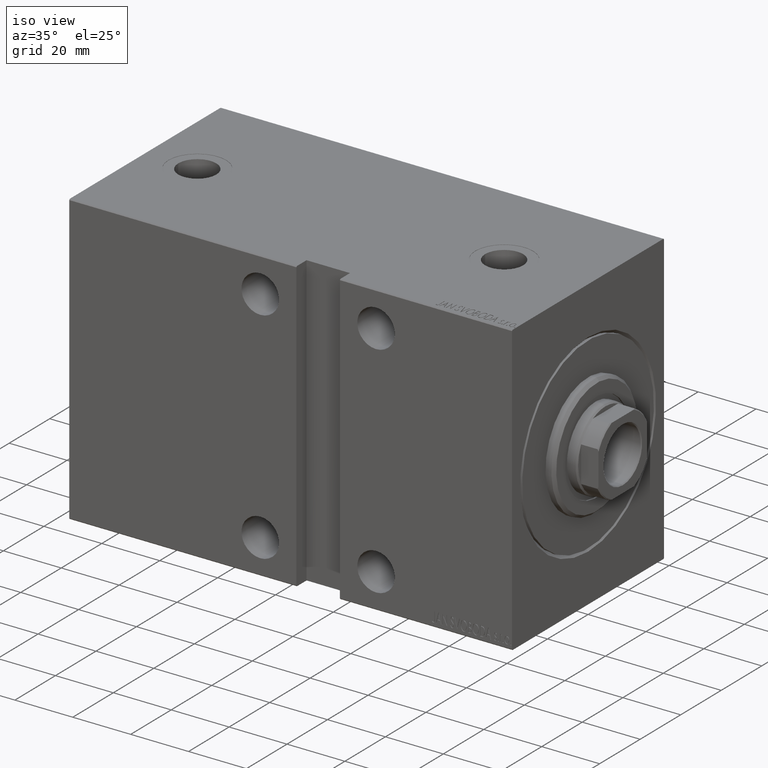
[diagram: clean part render]
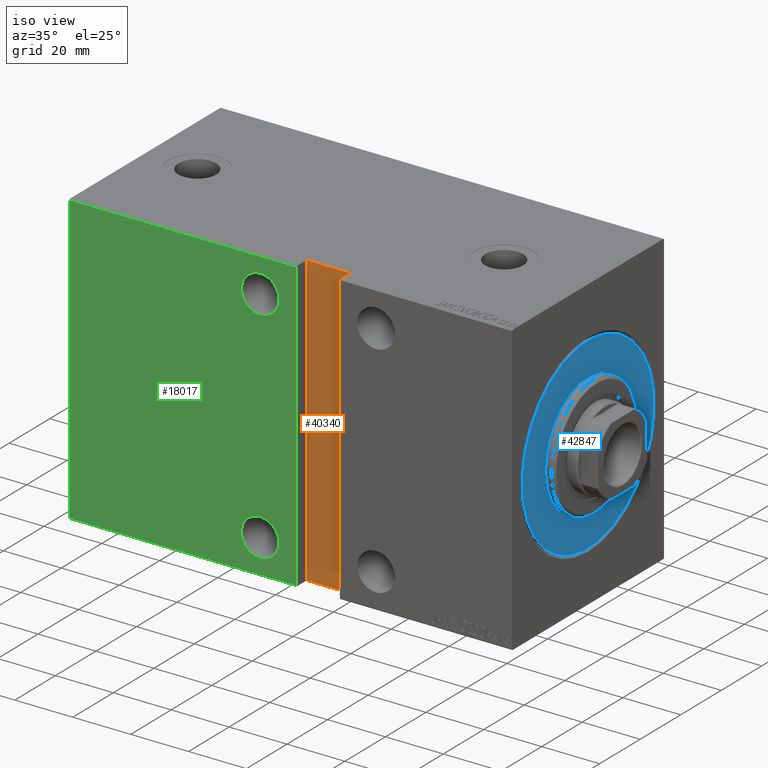
[diagram: same view with three faces highlighted in distinct colors, each labeled with its STEP entity id]
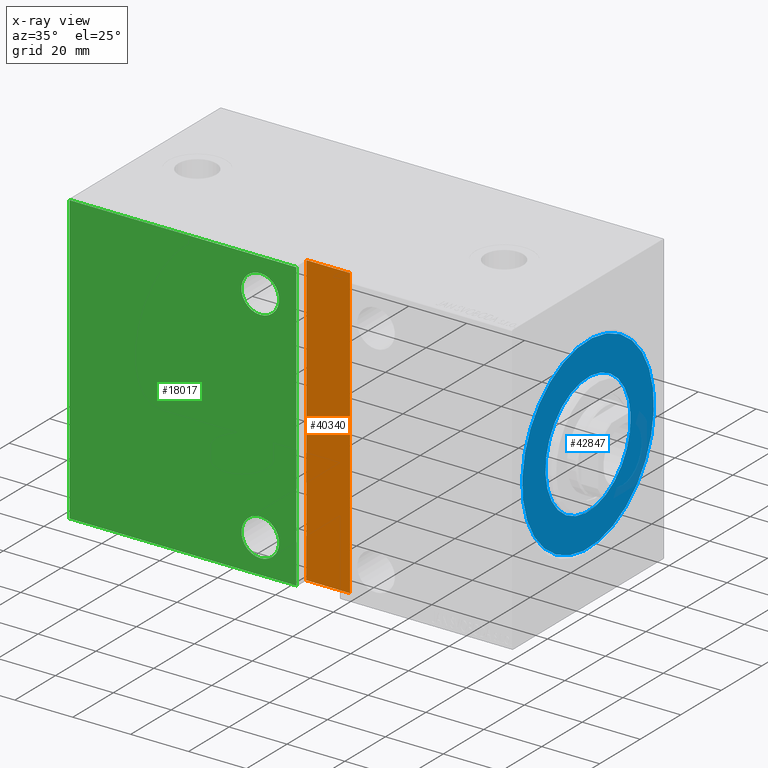
[diagram: x-ray of the same camera — body ghosted, the three highlighted faces saturated]
A machine part, iso view with three faces highlighted in distinct colors.
The next image is the same camera in x-ray (body ghosted, the three faces saturated) — at least one of them is partly hidden behind the body in this view.
Their STEP definitions:

[orange] entity #40340 — the highlighted planar face has unit normal (0, -1, -0).
#128 = LINE ( 'NONE', #20967, #19027 ) ;
#233 = CARTESIAN_POINT ( 'NONE',  ( 59.50000000000001421, 32.50000000000001421, 50.00000000000000000 ) ) ;
#967 = DIRECTION ( 'NONE',  ( -1.387778780781445676E-16, 0.000000000000000000, -1.000000000000000000 ) ) ;
#1252 = DIRECTION ( 'NONE',  ( 1.000000000000000000, 0.000000000000000000, 0.000000000000000000 ) ) ;
#1839 = DIRECTION ( 'NONE',  ( 0.000000000000000000, -0.000000000000000000, 1.000000000000000000 ) ) ;
#3887 = EDGE_CURVE ( 'NONE', #4710, #32800, #34693, .T. ) ;
#4305 = CARTESIAN_POINT ( 'NONE',  ( 74.50000000000002842, 32.50000000000001421, 50.00000000000000000 ) ) ;
#4710 = VERTEX_POINT ( 'NONE', #7226 ) ;
#7022 = DIRECTION ( 'NONE',  ( 1.000000000000000000, 0.000000000000000000, 0.000000000000000000 ) ) ;
#7226 = CARTESIAN_POINT ( 'NONE',  ( 74.50000000000002842, 32.50000000000001421, 50.00000000000000000 ) ) ;
#9083 = CARTESIAN_POINT ( 'NONE',  ( 59.50000000000001421, 32.50000000000001421, 50.00000000000000000 ) ) ;
#10224 = DIRECTION ( 'NONE',  ( -6.938893903907228378E-17, 0.000000000000000000, -1.000000000000000000 ) ) ;
#12607 = VERTEX_POINT ( 'NONE', #19993 ) ;
#14768 = ORIENTED_EDGE ( 'NONE', *, *, #3887, .T. ) ;
#15378 = CARTESIAN_POINT ( 'NONE',  ( 0.000000000000000000, 32.50000000000001421, 0.000000000000000000 ) ) ;
#17187 = ORIENTED_EDGE ( 'NONE', *, *, #20558, .F. ) ;
#19027 = VECTOR ( 'NONE', #7022, 1000.000000000000000 ) ;
#19256 = VECTOR ( 'NONE', #967, 1000.000000000000000 ) ;
#19993 = CARTESIAN_POINT ( 'NONE',  ( 59.50000000000000711, 32.50000000000001421, -50.00000000000000000 ) ) ;
#20163 = EDGE_CURVE ( 'NONE', #12607, #32800, #31645, .T. ) ;
#20558 = EDGE_CURVE ( 'NONE', #34324, #12607, #40838, .T. ) ;
#20950 = AXIS2_PLACEMENT_3D ( 'NONE', #15378, #39326, #1839 ) ;
#20967 = CARTESIAN_POINT ( 'NONE',  ( 59.50000000000001421, 32.50000000000001421, 50.00000000000000000 ) ) ;
#24423 = CARTESIAN_POINT ( 'NONE',  ( 74.50000000000002842, 32.50000000000001421, -50.00000000000000000 ) ) ;
#25806 = PLANE ( 'NONE',  #20950 ) ;
#26871 = ORIENTED_EDGE ( 'NONE', *, *, #29093, .T. ) ;
#28677 = FACE_OUTER_BOUND ( 'NONE', #29746, .T. ) ;
#29093 = EDGE_CURVE ( 'NONE', #34324, #4710, #128, .T. ) ;
#29746 = EDGE_LOOP ( 'NONE', ( #31941, #17187, #26871, #14768 ) ) ;
#30167 = VECTOR ( 'NONE', #1252, 1000.000000000000000 ) ;
#31645 = LINE ( 'NONE', #38749, #30167 ) ;
#31941 = ORIENTED_EDGE ( 'NONE', *, *, #20163, .F. ) ;
#32800 = VERTEX_POINT ( 'NONE', #24423 ) ;
#34324 = VERTEX_POINT ( 'NONE', #9083 ) ;
#34693 = LINE ( 'NONE', #4305, #19256 ) ;
#38749 = CARTESIAN_POINT ( 'NONE',  ( 59.50000000000000711, 32.50000000000001421, -50.00000000000000000 ) ) ;
#39326 = DIRECTION ( 'NONE',  ( -0.000000000000000000, 1.000000000000000000, 0.000000000000000000 ) ) ;
#40340 = ADVANCED_FACE ( 'NONE', ( #28677 ), #25806, .T. ) ;
#40838 = LINE ( 'NONE', #233, #42936 ) ;
#42936 = VECTOR ( 'NONE', #10224, 1000.000000000000000 ) ;

[blue] entity #42847 — the highlighted planar face has unit normal (-1, 0, 0).
#171 = EDGE_CURVE ( 'NONE', #12623, #2119, #5093, .T. ) ;
#670 = AXIS2_PLACEMENT_3D ( 'NONE', #25801, #32662, #40211 ) ;
#1465 = ORIENTED_EDGE ( 'NONE', *, *, #43918, .F. ) ;
#1968 = FACE_BOUND ( 'NONE', #10017, .T. ) ;
#2119 = VERTEX_POINT ( 'NONE', #6058 ) ;
#3316 = DIRECTION ( 'NONE',  ( 0.000000000000000000, 0.000000000000000000, -1.000000000000000000 ) ) ;
#3707 = EDGE_LOOP ( 'NONE', ( #41887, #42313 ) ) ;
#4179 = CARTESIAN_POINT ( 'NONE',  ( 0.000000000000000000, 0.000000000000000000, 0.000000000000000000 ) ) ;
#5093 = CIRCLE ( 'NONE', #42662, 32.50000000000000000 ) ;
#6058 = CARTESIAN_POINT ( 'NONE',  ( 0.000000000000000000, 0.000000000000000000, -32.50000000000000000 ) ) ;
#8132 = VERTEX_POINT ( 'NONE', #27692 ) ;
#8839 = PLANE ( 'NONE',  #21746 ) ;
#9054 = CARTESIAN_POINT ( 'NONE',  ( 0.000000000000000000, 0.000000000000000000, 0.000000000000000000 ) ) ;
#10017 = EDGE_LOOP ( 'NONE', ( #1465, #43062 ) ) ;
#10254 = AXIS2_PLACEMENT_3D ( 'NONE', #4179, #23948, #3316 ) ;
#11129 = AXIS2_PLACEMENT_3D ( 'NONE', #14338, #31640, #34544 ) ;
#12623 = VERTEX_POINT ( 'NONE', #33528 ) ;
#13169 = CIRCLE ( 'NONE', #11129, 21.00000000000000000 ) ;
#14338 = CARTESIAN_POINT ( 'NONE',  ( 0.000000000000000000, 0.000000000000000000, 0.000000000000000000 ) ) ;
#15496 = FACE_OUTER_BOUND ( 'NONE', #3707, .T. ) ;
#17620 = VERTEX_POINT ( 'NONE', #23403 ) ;
#18802 = DIRECTION ( 'NONE',  ( 0.000000000000000000, 0.000000000000000000, 1.000000000000000000 ) ) ;
#21706 = CARTESIAN_POINT ( 'NONE',  ( 0.000000000000000000, 0.000000000000000000, 0.000000000000000000 ) ) ;
#21746 = AXIS2_PLACEMENT_3D ( 'NONE', #21706, #29029, #42567 ) ;
#23403 = CARTESIAN_POINT ( 'NONE',  ( 0.000000000000000000, 0.000000000000000000, 21.00000000000000000 ) ) ;
#23948 = DIRECTION ( 'NONE',  ( 1.000000000000000000, -0.000000000000000000, 0.000000000000000000 ) ) ;
#25801 = CARTESIAN_POINT ( 'NONE',  ( 0.000000000000000000, 0.000000000000000000, 0.000000000000000000 ) ) ;
#27692 = CARTESIAN_POINT ( 'NONE',  ( 0.000000000000000000, 2.571758278209441661E-15, -21.00000000000000000 ) ) ;
#29029 = DIRECTION ( 'NONE',  ( -1.000000000000000000, 0.000000000000000000, 0.000000000000000000 ) ) ;
#30530 = EDGE_CURVE ( 'NONE', #2119, #12623, #31824, .T. ) ;
#31640 = DIRECTION ( 'NONE',  ( 1.000000000000000000, -0.000000000000000000, 0.000000000000000000 ) ) ;
#31824 = CIRCLE ( 'NONE', #670, 32.50000000000000000 ) ;
#32662 = DIRECTION ( 'NONE',  ( -1.000000000000000000, 0.000000000000000000, 0.000000000000000000 ) ) ;
#33528 = CARTESIAN_POINT ( 'NONE',  ( 0.000000000000000000, 3.980102097228898626E-15, 32.50000000000000000 ) ) ;
#34544 = DIRECTION ( 'NONE',  ( 0.000000000000000000, 0.000000000000000000, -1.000000000000000000 ) ) ;
#37176 = CIRCLE ( 'NONE', #10254, 21.00000000000000000 ) ;
#37390 = EDGE_CURVE ( 'NONE', #8132, #17620, #37176, .T. ) ;
#40211 = DIRECTION ( 'NONE',  ( 0.000000000000000000, 0.000000000000000000, 1.000000000000000000 ) ) ;
#41887 = ORIENTED_EDGE ( 'NONE', *, *, #30530, .F. ) ;
#42313 = ORIENTED_EDGE ( 'NONE', *, *, #171, .F. ) ;
#42338 = DIRECTION ( 'NONE',  ( -1.000000000000000000, 0.000000000000000000, 0.000000000000000000 ) ) ;
#42567 = DIRECTION ( 'NONE',  ( 0.000000000000000000, 0.000000000000000000, 1.000000000000000000 ) ) ;
#42662 = AXIS2_PLACEMENT_3D ( 'NONE', #9054, #42338, #18802 ) ;
#42847 = ADVANCED_FACE ( 'NONE', ( #1968, #15496 ), #8839, .F. ) ;
#43062 = ORIENTED_EDGE ( 'NONE', *, *, #37390, .F. ) ;
#43918 = EDGE_CURVE ( 'NONE', #17620, #8132, #13169, .T. ) ;

[green] entity #18017 — the highlighted planar face has unit normal (-0, 1, -0).
#3968 = DIRECTION ( 'NONE',  ( 1.000000000000000000, 0.000000000000000000, 0.000000000000000000 ) ) ;
#4671 = DIRECTION ( 'NONE',  ( 0.000000000000000000, 0.000000000000000000, 1.000000000000000000 ) ) ;
#4798 = VERTEX_POINT ( 'NONE', #17833 ) ;
#5235 = CARTESIAN_POINT ( 'NONE',  ( 153.0000000000000000, 37.50000000000002132, -49.69999999999998153 ) ) ;
#5584 = DIRECTION ( 'NONE',  ( 0.000000000000000000, 0.000000000000000000, 1.000000000000000000 ) ) ;
#5711 = FACE_OUTER_BOUND ( 'NONE', #30358, .T. ) ;
#6149 = EDGE_CURVE ( 'NONE', #4798, #35190, #15752, .T. ) ;
#7047 = EDGE_CURVE ( 'NONE', #26431, #42144, #17205, .T. ) ;
#8865 = VECTOR ( 'NONE', #38272, 1000.000000000000000 ) ;
#9247 = ORIENTED_EDGE ( 'NONE', *, *, #36641, .F. ) ;
#9380 = CARTESIAN_POINT ( 'NONE',  ( 74.50000000000001421, 37.50000000000001421, -49.69999999999998153 ) ) ;
#9698 = PLANE ( 'NONE',  #13224 ) ;
#10393 = VERTEX_POINT ( 'NONE', #35383 ) ;
#10907 = VECTOR ( 'NONE', #3968, 1000.000000000000000 ) ;
#11093 = EDGE_CURVE ( 'NONE', #35190, #4798, #13754, .T. ) ;
#11110 = LINE ( 'NONE', #20232, #32447 ) ;
#12539 = DIRECTION ( 'NONE',  ( -1.387778780781445676E-16, 0.000000000000000000, -1.000000000000000000 ) ) ;
#13224 = AXIS2_PLACEMENT_3D ( 'NONE', #23247, #36761, #19444 ) ;
#13754 = CIRCLE ( 'NONE', #23691, 6.500000000000005329 ) ;
#14670 = DIRECTION ( 'NONE',  ( 0.000000000000000000, 0.000000000000000000, 1.000000000000000000 ) ) ;
#15204 = LINE ( 'NONE', #5235, #8865 ) ;
#15752 = CIRCLE ( 'NONE', #17850, 6.500000000000005329 ) ;
#15859 = LINE ( 'NONE', #39164, #23002 ) ;
#16404 = CARTESIAN_POINT ( 'NONE',  ( 87.00000000000000000, 37.50000000000004263, 31.50000000000000000 ) ) ;
#16475 = CARTESIAN_POINT ( 'NONE',  ( 74.50000000000002842, 37.50000000000001421, 49.70000000000003837 ) ) ;
#16995 = CARTESIAN_POINT ( 'NONE',  ( 153.0000000000000000, 37.50000000000002132, -49.69999999999998153 ) ) ;
#17205 = CIRCLE ( 'NONE', #18588, 6.500000000000005329 ) ;
#17321 = DIRECTION ( 'NONE',  ( 0.000000000000000000, 0.000000000000000000, 1.000000000000000000 ) ) ;
#17479 = LINE ( 'NONE', #23953, #10907 ) ;
#17833 = CARTESIAN_POINT ( 'NONE',  ( 87.00000000000000000, 37.50000000000004263, -44.50000000000000000 ) ) ;
#17850 = AXIS2_PLACEMENT_3D ( 'NONE', #31501, #38376, #4671 ) ;
#18017 = ADVANCED_FACE ( 'NONE', ( #36095, #40309, #5711 ), #9698, .F. ) ;
#18498 = VERTEX_POINT ( 'NONE', #16475 ) ;
#18588 = AXIS2_PLACEMENT_3D ( 'NONE', #23792, #34195, #17321 ) ;
#18876 = CARTESIAN_POINT ( 'NONE',  ( 87.00000000000000000, 37.50000000000004263, 44.50000000000001421 ) ) ;
#19444 = DIRECTION ( 'NONE',  ( 0.000000000000000000, 1.387778780781445676E-16, -1.000000000000000000 ) ) ;
#19574 = EDGE_CURVE ( 'NONE', #42144, #26431, #21656, .T. ) ;
#20166 = CARTESIAN_POINT ( 'NONE',  ( 87.00000000000000000, 37.50000000000004263, -31.49999999999998579 ) ) ;
#20232 = CARTESIAN_POINT ( 'NONE',  ( 153.0000000000000000, 37.50000000000002132, -50.00000000000000000 ) ) ;
#21656 = CIRCLE ( 'NONE', #42201, 6.500000000000005329 ) ;
#23002 = VECTOR ( 'NONE', #12539, 1000.000000000000000 ) ;
#23247 = CARTESIAN_POINT ( 'NONE',  ( 153.0000000000000000, 37.50000000000002132, -50.00000000000000000 ) ) ;
#23691 = AXIS2_PLACEMENT_3D ( 'NONE', #32849, #39516, #5584 ) ;
#23792 = CARTESIAN_POINT ( 'NONE',  ( 87.00000000000000000, 37.50000000000004263, 38.00000000000000711 ) ) ;
#23953 = CARTESIAN_POINT ( 'NONE',  ( 153.0000000000000000, 37.50000000000000711, 49.70000000000003837 ) ) ;
#24030 = ORIENTED_EDGE ( 'NONE', *, *, #6149, .F. ) ;
#25817 = ORIENTED_EDGE ( 'NONE', *, *, #38726, .T. ) ;
#26109 = ORIENTED_EDGE ( 'NONE', *, *, #7047, .F. ) ;
#26431 = VERTEX_POINT ( 'NONE', #16404 ) ;
#26983 = EDGE_CURVE ( 'NONE', #29964, #10393, #11110, .T. ) ;
#27109 = DIRECTION ( 'NONE',  ( 0.000000000000000000, -1.387778780781445676E-16, 1.000000000000000000 ) ) ;
#29098 = CARTESIAN_POINT ( 'NONE',  ( 87.00000000000000000, 37.50000000000004263, 38.00000000000000711 ) ) ;
#29964 = VERTEX_POINT ( 'NONE', #16995 ) ;
#30340 = EDGE_LOOP ( 'NONE', ( #32530, #26109 ) ) ;
#30358 = EDGE_LOOP ( 'NONE', ( #32098, #25817, #9247, #31757 ) ) ;
#31483 = VERTEX_POINT ( 'NONE', #9380 ) ;
#31501 = CARTESIAN_POINT ( 'NONE',  ( 87.00000000000000000, 37.50000000000004263, -37.99999999999999289 ) ) ;
#31757 = ORIENTED_EDGE ( 'NONE', *, *, #36122, .T. ) ;
#32098 = ORIENTED_EDGE ( 'NONE', *, *, #26983, .F. ) ;
#32447 = VECTOR ( 'NONE', #27109, 1000.000000000000000 ) ;
#32530 = ORIENTED_EDGE ( 'NONE', *, *, #19574, .F. ) ;
#32849 = CARTESIAN_POINT ( 'NONE',  ( 87.00000000000000000, 37.50000000000004263, -37.99999999999999289 ) ) ;
#34195 = DIRECTION ( 'NONE',  ( 0.000000000000000000, 1.000000000000000000, 0.000000000000000000 ) ) ;
#34696 = ORIENTED_EDGE ( 'NONE', *, *, #11093, .F. ) ;
#35190 = VERTEX_POINT ( 'NONE', #20166 ) ;
#35383 = CARTESIAN_POINT ( 'NONE',  ( 153.0000000000000000, 37.50000000000000711, 49.70000000000003837 ) ) ;
#36095 = FACE_BOUND ( 'NONE', #36466, .T. ) ;
#36122 = EDGE_CURVE ( 'NONE', #18498, #10393, #17479, .T. ) ;
#36466 = EDGE_LOOP ( 'NONE', ( #34696, #24030 ) ) ;
#36641 = EDGE_CURVE ( 'NONE', #18498, #31483, #15859, .T. ) ;
#36761 = DIRECTION ( 'NONE',  ( 0.000000000000000000, -1.000000000000000000, -1.387778780781445676E-16 ) ) ;
#38272 = DIRECTION ( 'NONE',  ( -1.000000000000000000, 0.000000000000000000, 0.000000000000000000 ) ) ;
#38376 = DIRECTION ( 'NONE',  ( 0.000000000000000000, 1.000000000000000000, 0.000000000000000000 ) ) ;
#38726 = EDGE_CURVE ( 'NONE', #29964, #31483, #15204, .T. ) ;
#39164 = CARTESIAN_POINT ( 'NONE',  ( 74.50000000000002842, 37.50000000000001421, 50.00000000000000000 ) ) ;
#39516 = DIRECTION ( 'NONE',  ( 0.000000000000000000, 1.000000000000000000, 0.000000000000000000 ) ) ;
#40309 = FACE_BOUND ( 'NONE', #30340, .T. ) ;
#42144 = VERTEX_POINT ( 'NONE', #18876 ) ;
#42201 = AXIS2_PLACEMENT_3D ( 'NONE', #29098, #42635, #14670 ) ;
#42635 = DIRECTION ( 'NONE',  ( 0.000000000000000000, 1.000000000000000000, 0.000000000000000000 ) ) ;